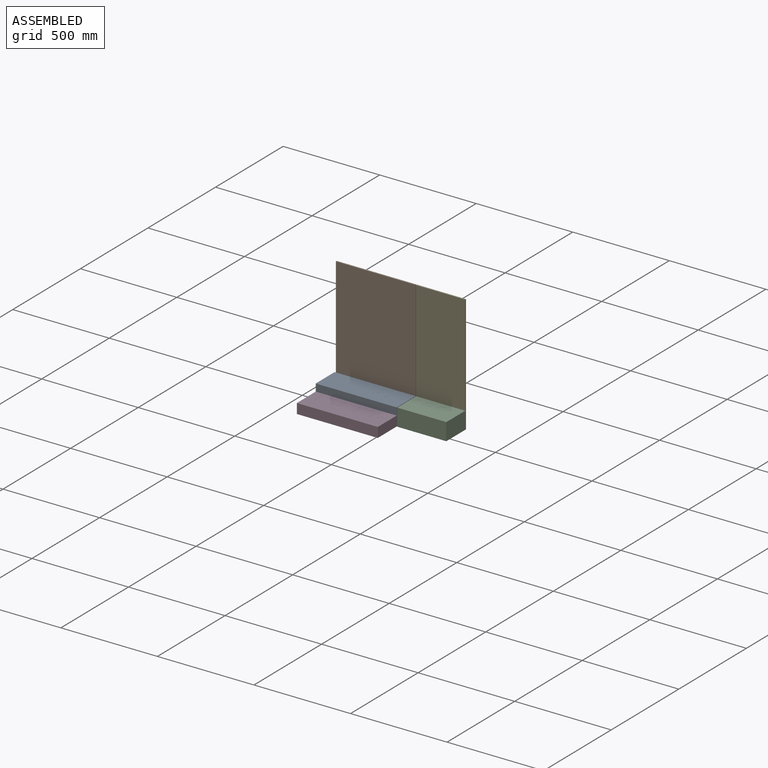
[diagram: assembled view]
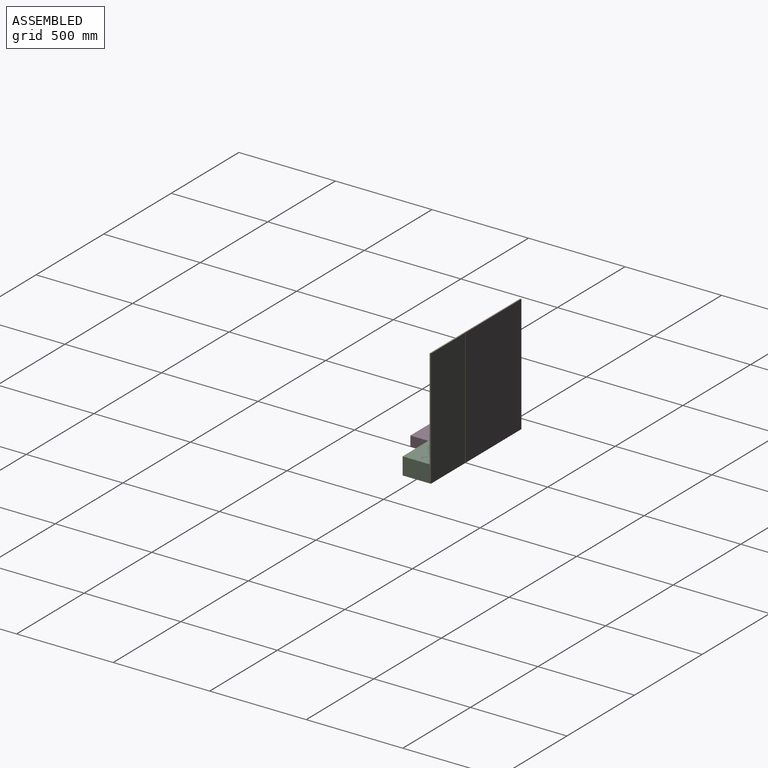
[diagram: assembled view, second angle]
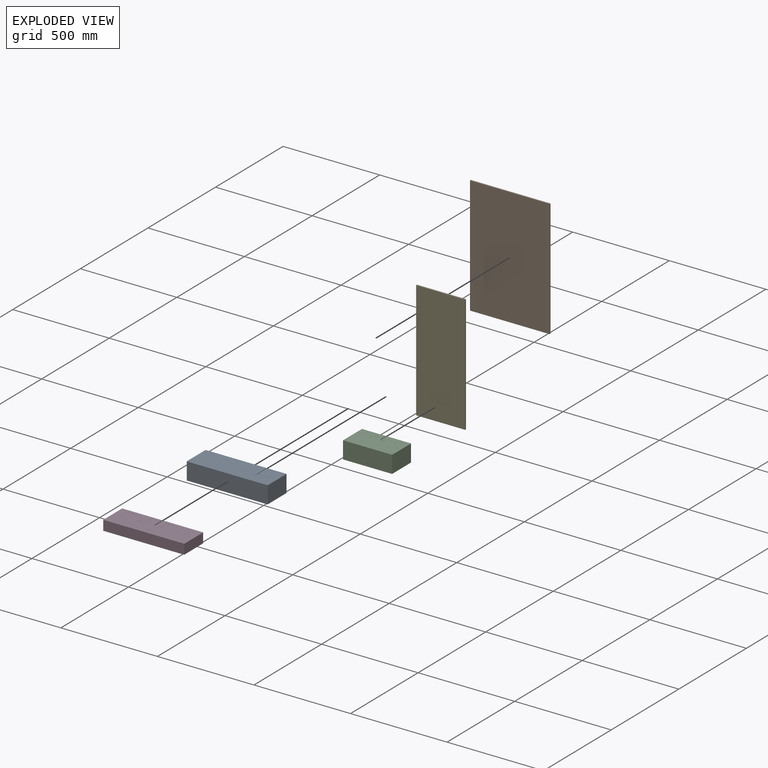
[diagram: exploded view]
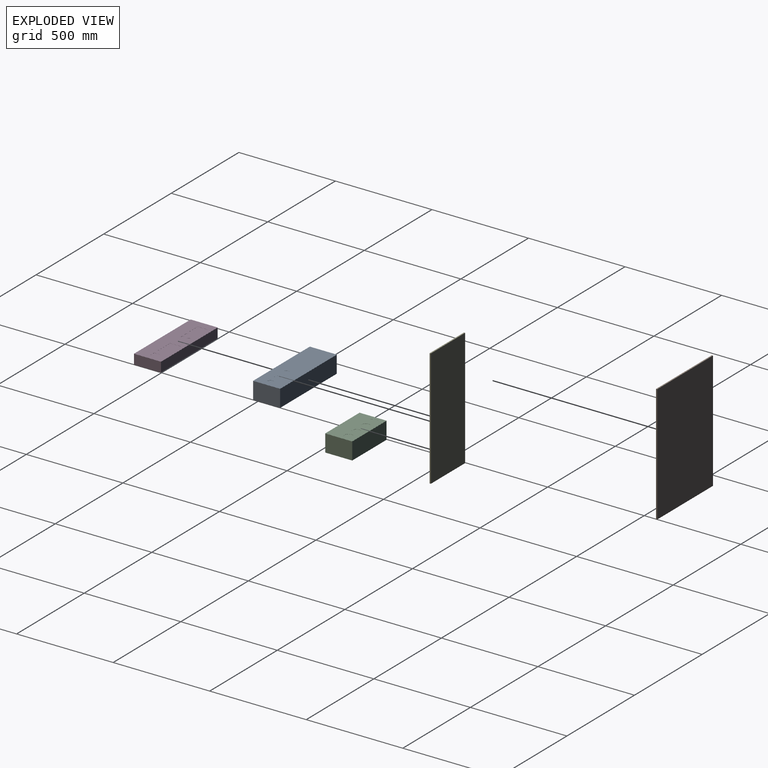
[diagram: exploded view, second angle]
ASSEMBLY  parts=5 mates=9
PART A: 32 faces, bbox 419.1x139.7x89.6 mm
  f0: plane 419.1x88.9mm, normal (0,1,0), area 37258mm2, adj f1,f7,f8,f9
  f1: plane 419.1x139.29mm, normal (0,0,1), area 58377.9mm2, adj f0,f2,f8,f9
  f2: plane 419.1x0.25mm, normal (0,1,0), area 106.5mm2, adj f1,f3,f8,f9
  f3: plane 419.1x139.29mm, normal (0,0,-1), area 56437.6mm2, adj f2,f4,f8,f9,f10,f11,f12,f13
  f4: plane 419.1x0.41mm, normal (0,1,0), area 170.3mm2, adj f3,f5,f8,f9
  f5: plane 419.1x139.7mm, normal (0,0,1), area 56608mm2, adj f4,f6,f8,f9,f10,f11,f12,f13
  f6: plane 419.1x89.56mm, normal (0,-1,0), area 37534.8mm2, adj f5,f7,f8,f9
  f7: plane 419.1x139.7mm, normal (0,0,-1), area 58548.3mm2, adj f0,f6,f8,f9
  f8: plane 139.7x89.56mm, normal (1,0,0), area 12476.2mm2, adj f0,f1,f2,f3,f4,f5,f6,f7
  f9: plane 139.7x89.56mm, normal (-1,0,0), area 12476.2mm2, adj f0,f1,f2,f3,f4,f5,f6,f7
  f10: extruded ~1.12x0.47mm, area 0.5mm2, adj f3,f5,f11,f19
  f11: plane 16.67x0.41mm, normal (0,-1,0), area 6.8mm2, adj f3,f5,f10,f12
  f12: extruded ~1.12x0.47mm, area 0.5mm2, adj f3,f5,f11,f13
  f13: extruded ~1.12x0.47mm, area 0.5mm2, adj f3,f5,f12,f14
  f14: plane 16.67x0.41mm, normal (1,0,0), area 6.8mm2, adj f3,f5,f13,f15
  f15: extruded ~1.12x0.47mm, area 0.5mm2, adj f3,f5,f14,f16
  f16: extruded ~1.12x0.47mm, area 0.5mm2, adj f3,f5,f15,f17
  f17: plane 16.67x0.41mm, normal (0,1,0), area 6.8mm2, adj f3,f5,f16,f18
  f18: extruded ~1.12x0.47mm, area 0.5mm2, adj f3,f5,f17,f20
  f19: extruded ~1.12x0.46mm, area 0.5mm2, adj f3,f5,f10,f21
  f20: extruded ~1.12x0.46mm, area 0.5mm2, adj f3,f5,f18,f21
  f21: plane 16.67x0.41mm, normal (-1,0,0), area 6.8mm2, adj f3,f5,f19,f20
  f22: extruded ~10.38x4.3mm, area 4.7mm2, adj f3,f5,f23,f24
  f23: extruded ~10.38x4.3mm, area 4.7mm2, adj f3,f5,f22,f25
  f24: extruded ~20.77x4.3mm, area 9.4mm2, adj f3,f5,f22,f26
  f25: extruded ~20.77x4.3mm, area 9.4mm2, adj f3,f5,f23,f26
  f26: extruded ~20.77x4.3mm, area 9.4mm2, adj f3,f5,f24,f25
  f27: extruded ~11.79x4.88mm, area 5.3mm2, adj f3,f5,f28,f29
  f28: extruded ~11.79x4.88mm, area 5.3mm2, adj f3,f5,f27,f30
  f29: extruded ~23.57x4.88mm, area 10.6mm2, adj f3,f5,f27,f31
  f30: extruded ~23.57x4.88mm, area 10.6mm2, adj f3,f5,f28,f31
  f31: extruded ~23.57x4.88mm, area 10.6mm2, adj f3,f5,f29,f30
PART B: 6 faces, bbox 412.8x6.4x609.6 mm
  f0: plane 609.6x6.35mm, normal (1,0,0), area 3871mm2, adj f1,f3,f4,f5
  f1: plane 412.75x6.35mm, normal (0,0,1), area 2621mm2, adj f0,f2,f4,f5
  f2: plane 609.6x6.35mm, normal (-1,0,0), area 3871mm2, adj f1,f3,f4,f5
  f3: plane 412.75x6.35mm, normal (0,0,-1), area 2621mm2, adj f0,f2,f4,f5
  f4: plane 609.6x412.75mm, normal (0,1,0), area 251612.4mm2, adj f0,f1,f2,f3
  f5: plane 609.6x412.75mm, normal (0,-1,0), area 251612.4mm2, adj f0,f1,f2,f3
PART C: 26 faces, bbox 254x139.7x89.6 mm
  f0: plane 254x88.9mm, normal (0,1,0), area 22580.6mm2, adj f1,f7,f8,f9
  f1: plane 254x139.29mm, normal (0,0,1), area 35380.6mm2, adj f0,f2,f8,f9
  f2: plane 254x0.25mm, normal (0,1,0), area 64.5mm2, adj f1,f3,f8,f9
  f3: plane 254x139.29mm, normal (0,0,-1), area 29826.2mm2, adj f2,f4,f8,f9,f10,f11,f12,f13
  f4: plane 254x0.41mm, normal (0,1,0), area 103.2mm2, adj f3,f5,f8,f9
  f5: plane 254x139.7mm, normal (0,0,1), area 29929.9mm2, adj f4,f6,f8,f9,f10,f11,f12,f13
  f6: plane 254x89.56mm, normal (0,-1,0), area 22748.3mm2, adj f5,f7,f8,f9
  f7: plane 254x139.7mm, normal (0,0,-1), area 35483.8mm2, adj f0,f6,f8,f9
  f8: plane 139.7x89.56mm, normal (1,0,0), area 12476.2mm2, adj f0,f1,f2,f3,f4,f5,f6,f7
  f9: plane 139.7x89.56mm, normal (-1,0,0), area 12476.2mm2, adj f0,f1,f2,f3,f4,f5,f6,f7
  f10: extruded ~35.91x21.03mm, area 20.1mm2, adj f3,f5,f11,f12
  f11: extruded ~29.75x6.16mm, area 13.4mm2, adj f3,f5,f10,f13
  f12: extruded ~14.87x6.16mm, area 6.7mm2, adj f3,f5,f10,f13
  f13: extruded ~29.75x6.16mm, area 13.4mm2, adj f3,f5,f11,f12
  f14: extruded ~35.91x21.03mm, area 20.1mm2, adj f3,f5,f15,f16
  f15: extruded ~29.75x6.16mm, area 13.4mm2, adj f3,f5,f14,f17
  f16: extruded ~14.87x6.16mm, area 6.7mm2, adj f3,f5,f14,f17
  f17: extruded ~29.75x6.16mm, area 13.4mm2, adj f3,f5,f15,f16
  f18: extruded ~35.91x21.03mm, area 20.1mm2, adj f3,f5,f19,f20
  f19: extruded ~29.75x6.16mm, area 13.4mm2, adj f3,f5,f18,f21
  f20: extruded ~14.87x6.16mm, area 6.7mm2, adj f3,f5,f18,f21
  f21: extruded ~29.75x6.16mm, area 13.4mm2, adj f3,f5,f19,f20
  f22: extruded ~35.91x21.03mm, area 20.1mm2, adj f3,f5,f23,f24
  f23: extruded ~29.75x6.16mm, area 13.4mm2, adj f3,f5,f22,f25
  f24: extruded ~14.87x6.16mm, area 6.7mm2, adj f3,f5,f22,f25
  f25: extruded ~29.75x6.16mm, area 13.4mm2, adj f3,f5,f23,f24
PART D: 49 faces, bbox 419.1x139.7x51.5 mm
  f0: plane 419.1x50.8mm, normal (0,1,0), area 21290.3mm2, adj f1,f7,f8,f9
  f1: plane 419.1x139.29mm, normal (0,0,1), area 58377.9mm2, adj f0,f2,f8,f9
  f2: plane 419.1x0.25mm, normal (0,1,0), area 106.5mm2, adj f1,f3,f8,f9
  f3: plane 419.1x139.29mm, normal (0,0,-1), area 48965mm2, adj f2,f4,f8,f9,f10,f11,f12,f13
  f4: plane 419.1x0.41mm, normal (0,1,0), area 170.3mm2, adj f3,f5,f8,f9
  f5: plane 419.1x139.7mm, normal (0,0,1), area 49135.5mm2, adj f4,f6,f8,f9,f10,f11,f12,f13
  f6: plane 419.1x51.46mm, normal (0,-1,0), area 21567.1mm2, adj f5,f7,f8,f9
  f7: plane 419.1x139.7mm, normal (0,0,-1), area 58548.3mm2, adj f0,f6,f8,f9
  f8: plane 139.7x51.46mm, normal (1,0,0), area 7153.6mm2, adj f0,f1,f2,f3,f4,f5,f6,f7
  f9: plane 139.7x51.46mm, normal (-1,0,0), area 7153.6mm2, adj f0,f1,f2,f3,f4,f5,f6,f7
  f10: extruded ~5.89x2.44mm, area 2.7mm2, adj f3,f5,f11,f12
  f11: extruded ~5.89x2.44mm, area 2.7mm2, adj f3,f5,f10,f13
  f12: extruded ~11.79x2.44mm, area 5.3mm2, adj f3,f5,f10,f14
  f13: extruded ~11.79x2.44mm, area 5.3mm2, adj f3,f5,f11,f14
  f14: extruded ~11.79x2.44mm, area 5.3mm2, adj f3,f5,f12,f13
  f15: plane 26.19x0.41mm, normal (-1,0,0), area 10.6mm2, adj f3,f5,f16,f17
  f16: plane 26.19x0.41mm, normal (0,1,0), area 10.6mm2, adj f3,f5,f15,f18
  f17: plane 26.19x0.41mm, normal (0,-1,0), area 10.6mm2, adj f3,f5,f15,f18
  f18: plane 26.19x0.41mm, normal (1,0,0), area 10.6mm2, adj f3,f5,f16,f17
  f19: extruded ~1.68x0.7mm, area 0.8mm2, adj f3,f5,f20,f28
  f20: plane 8.73x0.41mm, normal (0,-1,0), area 3.5mm2, adj f3,f5,f19,f21
  f21: extruded ~1.68x0.7mm, area 0.8mm2, adj f3,f5,f20,f22
  f22: extruded ~1.68x0.7mm, area 0.8mm2, adj f3,f5,f21,f23
  f23: plane 8.73x0.41mm, normal (1,0,0), area 3.5mm2, adj f3,f5,f22,f24
  f24: extruded ~1.68x0.7mm, area 0.8mm2, adj f3,f5,f23,f25
  f25: extruded ~1.68x0.7mm, area 0.8mm2, adj f3,f5,f24,f26
  f26: plane 8.73x0.41mm, normal (0,1,0), area 3.5mm2, adj f3,f5,f25,f27
  f27: extruded ~1.68x0.7mm, area 0.8mm2, adj f3,f5,f26,f29
  f28: extruded ~1.68x0.7mm, area 0.8mm2, adj f3,f5,f19,f30
  f29: extruded ~1.68x0.7mm, area 0.8mm2, adj f3,f5,f27,f30
  f30: plane 8.73x0.41mm, normal (-1,0,0), area 3.5mm2, adj f3,f5,f28,f29
  f31: plane 55.56x0.41mm, normal (-1,0,0), area 22.6mm2, adj f3,f5,f32,f33
  f32: plane 69.85x0.41mm, normal (0,1,0), area 28.4mm2, adj f3,f5,f31,f34
  f33: plane 69.85x0.41mm, normal (0,-1,0), area 28.4mm2, adj f3,f5,f31,f34
  f34: plane 55.56x0.41mm, normal (1,0,0), area 22.6mm2, adj f3,f5,f32,f33
  f35: extruded ~6.74x2.79mm, area 3mm2, adj f3,f5,f36,f37
  f36: extruded ~6.74x2.79mm, area 3mm2, adj f3,f5,f35,f38
  f37: extruded ~13.47x2.79mm, area 6.1mm2, adj f3,f5,f35,f39
  f38: extruded ~13.47x2.79mm, area 6.1mm2, adj f3,f5,f36,f39
  f39: extruded ~13.47x2.79mm, area 6.1mm2, adj f3,f5,f37,f38
  f40: extruded ~6.74x2.79mm, area 3mm2, adj f3,f5,f41,f42
  f41: extruded ~6.74x2.79mm, area 3mm2, adj f3,f5,f40,f43
  f42: extruded ~13.47x2.79mm, area 6.1mm2, adj f3,f5,f40,f44
  f43: extruded ~13.47x2.79mm, area 6.1mm2, adj f3,f5,f41,f44
  f44: extruded ~13.47x2.79mm, area 6.1mm2, adj f3,f5,f42,f43
  f45: plane 69.85x0.41mm, normal (0,1,0), area 28.4mm2, adj f3,f5,f46,f47
  f46: plane 55.56x0.41mm, normal (1,0,0), area 22.6mm2, adj f3,f5,f45,f48
  f47: plane 55.56x0.41mm, normal (-1,0,0), area 22.6mm2, adj f3,f5,f45,f48
  f48: plane 69.85x0.41mm, normal (0,-1,0), area 28.4mm2, adj f3,f5,f46,f47
PART E: 6 faces, bbox 254x6.4x609.6 mm
  f0: plane 609.6x6.35mm, normal (1,0,0), area 3871mm2, adj f1,f3,f4,f5
  f1: plane 254x6.35mm, normal (0,0,1), area 1612.9mm2, adj f0,f2,f4,f5
  f2: plane 609.6x6.35mm, normal (-1,0,0), area 3871mm2, adj f1,f3,f4,f5
  f3: plane 254x6.35mm, normal (0,0,-1), area 1612.9mm2, adj f0,f2,f4,f5
  f4: plane 609.6x254mm, normal (0,1,0), area 154838.4mm2, adj f0,f1,f2,f3
  f5: plane 609.6x254mm, normal (0,-1,0), area 154838.4mm2, adj f0,f1,f2,f3
PLACE A t=(-183.92,86.65,-77.43)mm
PLACE B t=(25.63,86.65,-77.43)mm fixed
PLACE C t=(155.81,86.65,-77.43)mm
PLACE D t=(-183.92,-53.05,-77.43)mm
PLACE E t=(282.81,86.65,-77.43)mm fixed
MATE planar A.f0 <-> B.f5  axis (0,1,0) through (-183.92,86.65,11.47)mm
MATE planar A.f6 <-> D.f0  axis (0,-1,0) through (-183.92,-53.05,-32.65)mm
MATE planar A.f8 <-> D.f8  axis (1,0,0) through (25.63,16.8,-32.77)mm
MATE planar E.f2 <-> C.f9  axis (-1,0,0) through (28.81,89.82,227.37)mm
MATE planar A.f8 <-> B.f0  axis (1,0,0) through (25.63,16.8,-32.77)mm
MATE planar E.f5 <-> C.f0  axis (0,-1,0) through (155.81,86.65,227.37)mm
MATE planar B.f3 <-> A.f7  axis (0,0,-1) through (-180.74,89.82,-77.43)mm
MATE planar E.f3 <-> C.f7  axis (0,0,-1) through (155.81,89.82,-77.43)mm
MATE planar A.f7 <-> D.f7  axis (0,0,-1) through (-183.92,16.8,-77.43)mm
